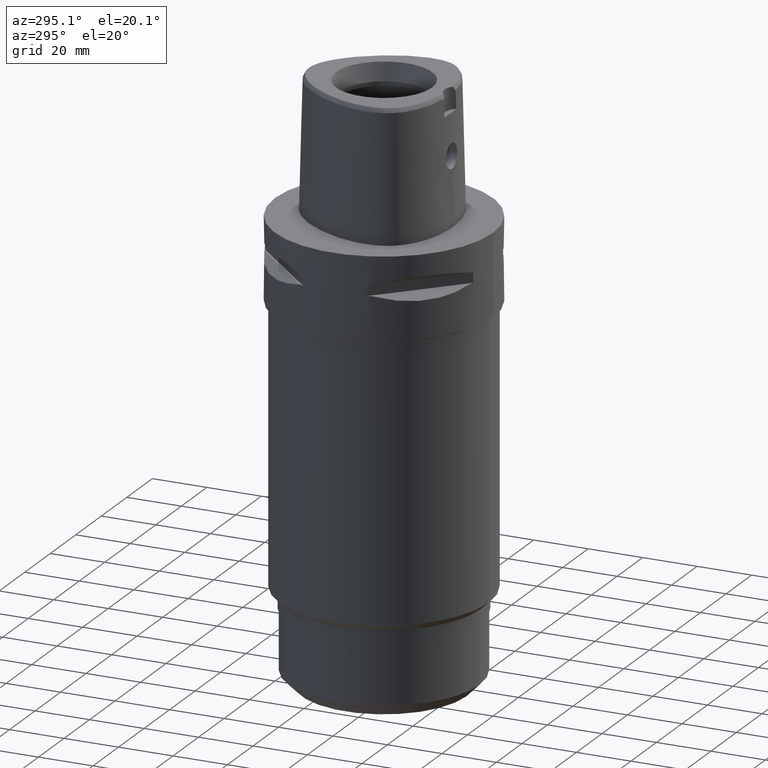
[diagram: clean part render]
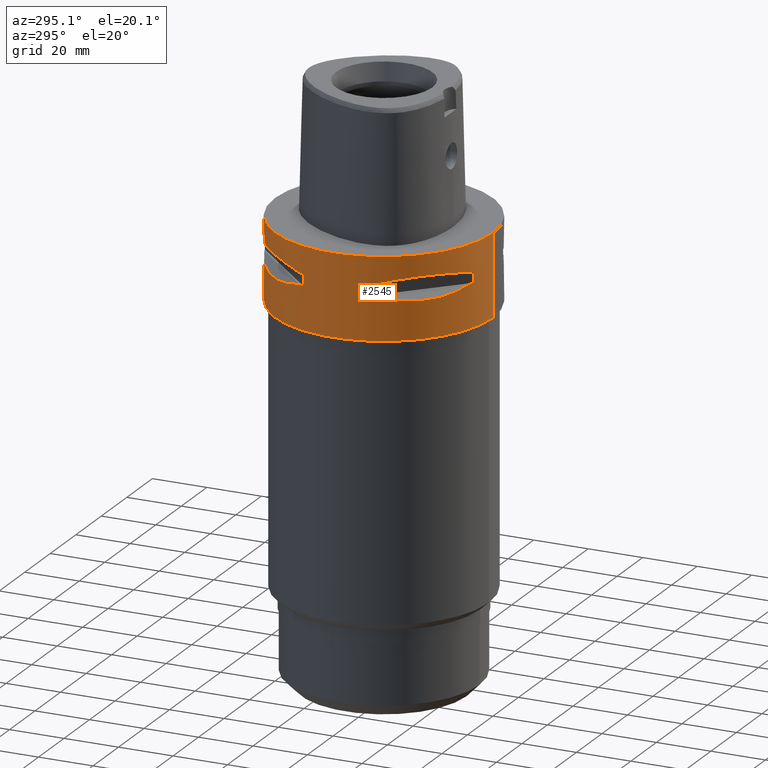
[diagram: same view with one face highlighted and labeled with its STEP entity id]
A machine part, auxiliary view. The second image highlights one B-rep face of the part: STEP entity #2545.
In plain terms, the highlighted cylindrical surface (partial cylindrical patch) has radius 40 mm, axis along (0, 0, -1).
Its self-contained STEP definition (entity closure, byte-faithful):
#276=CARTESIAN_POINT('',(0.E0,1.327149736236E-14,0.E0));
#277=DIRECTION('',(0.E0,0.E0,-1.E0));
#278=DIRECTION('',(0.E0,-1.E0,0.E0));
#279=AXIS2_PLACEMENT_3D('',#276,#277,#278);
#374=DIRECTION('',(0.E0,0.E0,-1.E0));
#375=VECTOR('',#374,3.E1);
#376=CARTESIAN_POINT('',(0.E0,-4.E1,0.E0));
#377=LINE('',#376,#375);
#381=DIRECTION('',(0.E0,0.E0,-1.E0));
#382=VECTOR('',#381,4.1E0);
#383=CARTESIAN_POINT('',(-1.176033600281E1,3.823211342708E1,-9.95E0));
#384=LINE('',#383,#382);
#388=CARTESIAN_POINT('',(-1.323717311056E1,3.774622163927E1,-1.405E1));
#389=CARTESIAN_POINT('',(-1.626143876435E1,3.668564587161E1,-1.485167303901E1));
#390=CARTESIAN_POINT('',(-2.171906657626E1,3.397359084062E1,-1.597254843317E1));
#391=CARTESIAN_POINT('',(-2.850324251697E1,2.850324251697E1,-1.650891631180E1));
#392=CARTESIAN_POINT('',(-3.397359084062E1,2.171906657626E1,-1.597254843317E1));
#393=CARTESIAN_POINT('',(-3.668564587161E1,1.626143876435E1,-1.485167303901E1));
#394=CARTESIAN_POINT('',(-3.774622163927E1,1.323717311056E1,-1.405E1));
#399=DIRECTION('',(0.E0,0.E0,1.E0));
#400=VECTOR('',#399,4.1E0);
#401=CARTESIAN_POINT('',(-3.823211342708E1,1.176033600281E1,-1.405E1));
#402=LINE('',#401,#400);
#406=DIRECTION('',(0.E0,0.E0,-1.E0));
#407=VECTOR('',#406,4.1E0);
#408=CARTESIAN_POINT('',(-3.823211342708E1,-1.176033600281E1,-9.95E0));
#409=LINE('',#408,#407);
#413=CARTESIAN_POINT('',(-3.774622163927E1,-1.323717311056E1,-1.405E1));
#414=CARTESIAN_POINT('',(-3.668564587161E1,-1.626143876435E1,
-1.485167303901E1));
#415=CARTESIAN_POINT('',(-3.397359084062E1,-2.171906657626E1,
-1.597254843317E1));
#416=CARTESIAN_POINT('',(-2.850324251697E1,-2.850324251697E1,
-1.650891631180E1));
#417=CARTESIAN_POINT('',(-2.171906657626E1,-3.397359084062E1,
-1.597254843317E1));
#418=CARTESIAN_POINT('',(-1.626143876435E1,-3.668564587161E1,
-1.485167303901E1));
#419=CARTESIAN_POINT('',(-1.323717311056E1,-3.774622163927E1,-1.405E1));
#424=DIRECTION('',(0.E0,0.E0,1.E0));
#425=VECTOR('',#424,4.1E0);
#426=CARTESIAN_POINT('',(-1.176033600281E1,-3.823211342708E1,-1.405E1));
#427=LINE('',#426,#425);
#431=DIRECTION('',(0.E0,0.E0,-1.E0));
#432=VECTOR('',#431,3.E1);
#433=CARTESIAN_POINT('',(0.E0,4.E1,0.E0));
#434=LINE('',#433,#432);
#496=CARTESIAN_POINT('',(0.E0,1.327149736236E-14,-3.E1));
#497=DIRECTION('',(0.E0,0.E0,1.E0));
#498=DIRECTION('',(0.E0,1.E0,0.E0));
#499=AXIS2_PLACEMENT_3D('',#496,#497,#498);
#1421=CARTESIAN_POINT('',(-1.323717311056E1,3.774622163927E1,
-9.950000000002E0));
#1422=CARTESIAN_POINT('',(-1.626143876435E1,3.668564587161E1,
-9.148326960991E0));
#1423=CARTESIAN_POINT('',(-2.171906657626E1,3.397359084062E1,
-8.027451566833E0));
#1424=CARTESIAN_POINT('',(-2.850324251697E1,2.850324251697E1,
-7.491083688204E0));
#1425=CARTESIAN_POINT('',(-3.397359084062E1,2.171906657626E1,
-8.027451566833E0));
#1426=CARTESIAN_POINT('',(-3.668564587161E1,1.626143876435E1,
-9.148326960991E0));
#1427=CARTESIAN_POINT('',(-3.774622163927E1,1.323717311056E1,
-9.950000000002E0));
#1432=CARTESIAN_POINT('',(0.E0,1.327149736236E-14,-9.95E0));
#1433=DIRECTION('',(0.E0,0.E0,1.E0));
#1434=DIRECTION('',(-9.436555409818E-1,3.309293277639E-1,0.E0));
#1435=AXIS2_PLACEMENT_3D('',#1432,#1433,#1434);
#1440=CARTESIAN_POINT('',(0.E0,1.327149736236E-14,-9.95E0));
#1441=DIRECTION('',(0.E0,0.E0,1.E0));
#1442=DIRECTION('',(-2.940084000703E-1,9.558028356770E-1,0.E0));
#1443=AXIS2_PLACEMENT_3D('',#1440,#1441,#1442);
#1462=CARTESIAN_POINT('',(0.E0,1.327149736236E-14,-1.405E1));
#1463=DIRECTION('',(0.E0,0.E0,-1.E0));
#1464=DIRECTION('',(-9.558028356770E-1,2.940084000703E-1,0.E0));
#1465=AXIS2_PLACEMENT_3D('',#1462,#1463,#1464);
#1470=CARTESIAN_POINT('',(0.E0,1.327149736236E-14,-1.405E1));
#1471=DIRECTION('',(0.E0,0.E0,-1.E0));
#1472=DIRECTION('',(-3.309293277639E-1,9.436555409818E-1,0.E0));
#1473=AXIS2_PLACEMENT_3D('',#1470,#1471,#1472);
#1492=CARTESIAN_POINT('',(-3.774622163927E1,-1.323717311056E1,
-9.950000000002E0));
#1493=CARTESIAN_POINT('',(-3.668564587161E1,-1.626143876435E1,
-9.148326960991E0));
#1494=CARTESIAN_POINT('',(-3.397359084062E1,-2.171906657626E1,
-8.027451566833E0));
#1495=CARTESIAN_POINT('',(-2.850324251697E1,-2.850324251697E1,
-7.491083688204E0));
#1496=CARTESIAN_POINT('',(-2.171906657626E1,-3.397359084062E1,
-8.027451566833E0));
#1497=CARTESIAN_POINT('',(-1.626143876435E1,-3.668564587161E1,
-9.148326960991E0));
#1498=CARTESIAN_POINT('',(-1.323717311056E1,-3.774622163927E1,
-9.950000000002E0));
#1503=CARTESIAN_POINT('',(0.E0,1.327149736236E-14,-9.95E0));
#1504=DIRECTION('',(0.E0,0.E0,1.E0));
#1505=DIRECTION('',(-3.309293277639E-1,-9.436555409818E-1,0.E0));
#1506=AXIS2_PLACEMENT_3D('',#1503,#1504,#1505);
#1511=CARTESIAN_POINT('',(0.E0,1.327149736236E-14,-9.95E0));
#1512=DIRECTION('',(0.E0,0.E0,1.E0));
#1513=DIRECTION('',(-9.558028356770E-1,-2.940084000703E-1,0.E0));
#1514=AXIS2_PLACEMENT_3D('',#1511,#1512,#1513);
#1533=CARTESIAN_POINT('',(0.E0,1.327149736236E-14,-1.405E1));
#1534=DIRECTION('',(0.E0,0.E0,-1.E0));
#1535=DIRECTION('',(-2.940084000703E-1,-9.558028356770E-1,0.E0));
#1536=AXIS2_PLACEMENT_3D('',#1533,#1534,#1535);
#1541=CARTESIAN_POINT('',(0.E0,1.327149736236E-14,-1.405E1));
#1542=DIRECTION('',(0.E0,0.E0,-1.E0));
#1543=DIRECTION('',(-9.436555409818E-1,-3.309293277639E-1,0.E0));
#1544=AXIS2_PLACEMENT_3D('',#1541,#1542,#1543);
#1585=CARTESIAN_POINT('',(0.E0,-4.E1,0.E0));
#1586=CARTESIAN_POINT('',(0.E0,4.E1,0.E0));
#1587=VERTEX_POINT('',#1585);
#1588=VERTEX_POINT('',#1586);
#1589=CARTESIAN_POINT('',(0.E0,4.E1,-3.E1));
#1590=VERTEX_POINT('',#1589);
#1591=CARTESIAN_POINT('',(0.E0,-4.E1,-3.E1));
#1592=VERTEX_POINT('',#1591);
#1593=VERTEX_POINT('',#1421);
#1594=VERTEX_POINT('',#1427);
#1595=CARTESIAN_POINT('',(-1.176033600281E1,3.823211342708E1,-9.95E0));
#1596=VERTEX_POINT('',#1595);
#1597=CARTESIAN_POINT('',(-1.176033600281E1,3.823211342708E1,-1.405E1));
#1598=VERTEX_POINT('',#1597);
#1599=CARTESIAN_POINT('',(-1.323717311056E1,3.774622163927E1,-1.405E1));
#1600=VERTEX_POINT('',#1599);
#1601=VERTEX_POINT('',#394);
#1602=CARTESIAN_POINT('',(-3.823211342708E1,1.176033600281E1,-1.405E1));
#1603=VERTEX_POINT('',#1602);
#1604=CARTESIAN_POINT('',(-3.823211342708E1,1.176033600281E1,-9.95E0));
#1605=VERTEX_POINT('',#1604);
#1606=VERTEX_POINT('',#1492);
#1607=VERTEX_POINT('',#1498);
#1608=CARTESIAN_POINT('',(-3.823211342708E1,-1.176033600281E1,-9.95E0));
#1609=VERTEX_POINT('',#1608);
#1610=CARTESIAN_POINT('',(-3.823211342708E1,-1.176033600281E1,-1.405E1));
#1611=VERTEX_POINT('',#1610);
#1612=CARTESIAN_POINT('',(-3.774622163927E1,-1.323717311056E1,-1.405E1));
#1613=VERTEX_POINT('',#1612);
#1614=VERTEX_POINT('',#419);
#1615=CARTESIAN_POINT('',(-1.176033600281E1,-3.823211342708E1,-1.405E1));
#1616=VERTEX_POINT('',#1615);
#1617=CARTESIAN_POINT('',(-1.176033600281E1,-3.823211342708E1,-9.95E0));
#1618=VERTEX_POINT('',#1617);
#2495=CARTESIAN_POINT('',(0.E0,1.327149736236E-14,8.37E0));
#2496=DIRECTION('',(0.E0,0.E0,-1.E0));
#2497=DIRECTION('',(0.E0,-1.E0,0.E0));
#2498=AXIS2_PLACEMENT_3D('',#2495,#2496,#2497);
#2499=CYLINDRICAL_SURFACE('',#2498,4.E1);
#2501=ORIENTED_EDGE('',*,*,#2500,.F.);
#2502=ORIENTED_EDGE('',*,*,#2483,.F.);
#2504=ORIENTED_EDGE('',*,*,#2503,.T.);
#2506=ORIENTED_EDGE('',*,*,#2505,.F.);
#2507=EDGE_LOOP('',(#2501,#2502,#2504,#2506));
#2508=FACE_OUTER_BOUND('',#2507,.F.);
#2510=ORIENTED_EDGE('',*,*,#2509,.F.);
#2512=ORIENTED_EDGE('',*,*,#2511,.F.);
#2514=ORIENTED_EDGE('',*,*,#2513,.T.);
#2516=ORIENTED_EDGE('',*,*,#2515,.F.);
#2518=ORIENTED_EDGE('',*,*,#2517,.T.);
#2520=ORIENTED_EDGE('',*,*,#2519,.F.);
#2522=ORIENTED_EDGE('',*,*,#2521,.T.);
#2524=ORIENTED_EDGE('',*,*,#2523,.F.);
#2525=EDGE_LOOP('',(#2510,#2512,#2514,#2516,#2518,#2520,#2522,#2524));
#2526=FACE_BOUND('',#2525,.F.);
#2528=ORIENTED_EDGE('',*,*,#2527,.F.);
#2530=ORIENTED_EDGE('',*,*,#2529,.F.);
#2532=ORIENTED_EDGE('',*,*,#2531,.T.);
#2534=ORIENTED_EDGE('',*,*,#2533,.F.);
#2536=ORIENTED_EDGE('',*,*,#2535,.T.);
#2538=ORIENTED_EDGE('',*,*,#2537,.F.);
#2540=ORIENTED_EDGE('',*,*,#2539,.T.);
#2542=ORIENTED_EDGE('',*,*,#2541,.F.);
#2543=EDGE_LOOP('',(#2528,#2530,#2532,#2534,#2536,#2538,#2540,#2542));
#2544=FACE_BOUND('',#2543,.F.);
#280=CIRCLE('',#279,4.E1);
#395=B_SPLINE_CURVE_WITH_KNOTS('',3,(#388,#389,#390,#391,#392,#393,#394),
.UNSPECIFIED.,.F.,.F.,(4,1,1,1,4),(0.E0,2.5E-1,5.E-1,7.5E-1,1.E0),
.UNSPECIFIED.);
#420=B_SPLINE_CURVE_WITH_KNOTS('',3,(#413,#414,#415,#416,#417,#418,#419),
.UNSPECIFIED.,.F.,.F.,(4,1,1,1,4),(0.E0,2.5E-1,5.E-1,7.5E-1,1.E0),
.UNSPECIFIED.);
#500=CIRCLE('',#499,4.E1);
#1428=B_SPLINE_CURVE_WITH_KNOTS('',3,(#1421,#1422,#1423,#1424,#1425,#1426,
#1427),.UNSPECIFIED.,.F.,.F.,(4,1,1,1,4),(0.E0,2.5E-1,5.E-1,7.5E-1,1.E0),
.UNSPECIFIED.);
#1436=CIRCLE('',#1435,4.E1);
#1444=CIRCLE('',#1443,4.E1);
#1466=CIRCLE('',#1465,4.E1);
#1474=CIRCLE('',#1473,4.E1);
#1499=B_SPLINE_CURVE_WITH_KNOTS('',3,(#1492,#1493,#1494,#1495,#1496,#1497,
#1498),.UNSPECIFIED.,.F.,.F.,(4,1,1,1,4),(0.E0,2.5E-1,5.E-1,7.5E-1,1.E0),
.UNSPECIFIED.);
#1507=CIRCLE('',#1506,4.E1);
#1515=CIRCLE('',#1514,4.E1);
#1537=CIRCLE('',#1536,4.E1);
#1545=CIRCLE('',#1544,4.E1);
#2483=EDGE_CURVE('',#1587,#1588,#280,.T.);
#2500=EDGE_CURVE('',#1588,#1590,#434,.T.);
#2503=EDGE_CURVE('',#1587,#1592,#377,.T.);
#2505=EDGE_CURVE('',#1590,#1592,#500,.T.);
#2509=EDGE_CURVE('',#1593,#1594,#1428,.T.);
#2511=EDGE_CURVE('',#1596,#1593,#1444,.T.);
#2513=EDGE_CURVE('',#1596,#1598,#384,.T.);
#2515=EDGE_CURVE('',#1600,#1598,#1474,.T.);
#2517=EDGE_CURVE('',#1600,#1601,#395,.T.);
#2519=EDGE_CURVE('',#1603,#1601,#1466,.T.);
#2521=EDGE_CURVE('',#1603,#1605,#402,.T.);
#2523=EDGE_CURVE('',#1594,#1605,#1436,.T.);
#2527=EDGE_CURVE('',#1606,#1607,#1499,.T.);
#2529=EDGE_CURVE('',#1609,#1606,#1515,.T.);
#2531=EDGE_CURVE('',#1609,#1611,#409,.T.);
#2533=EDGE_CURVE('',#1613,#1611,#1545,.T.);
#2535=EDGE_CURVE('',#1613,#1614,#420,.T.);
#2537=EDGE_CURVE('',#1616,#1614,#1537,.T.);
#2539=EDGE_CURVE('',#1616,#1618,#427,.T.);
#2541=EDGE_CURVE('',#1607,#1618,#1507,.T.);
#2545=ADVANCED_FACE('',(#2508,#2526,#2544),#2499,.T.);